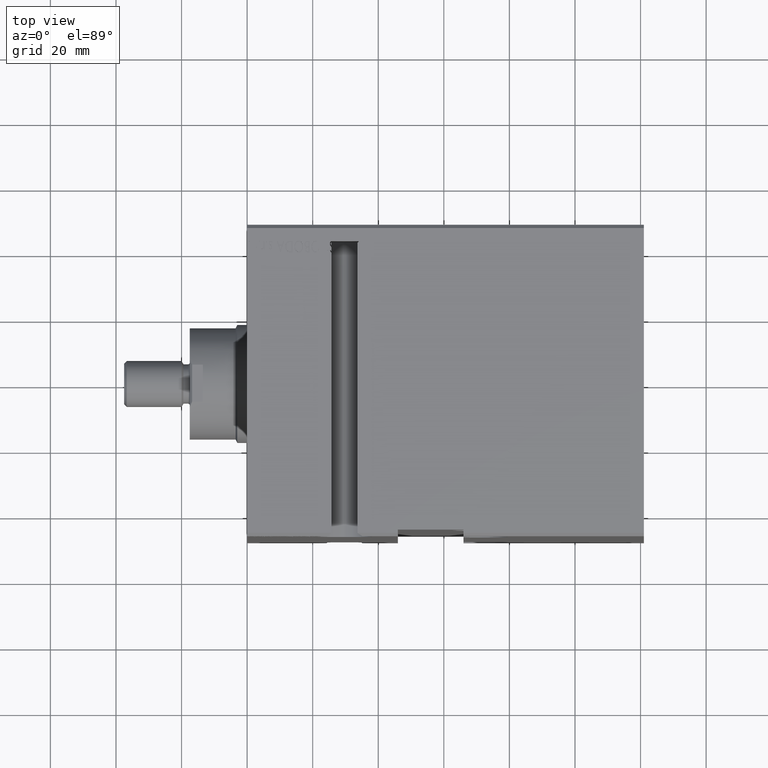
[diagram: clean part render]
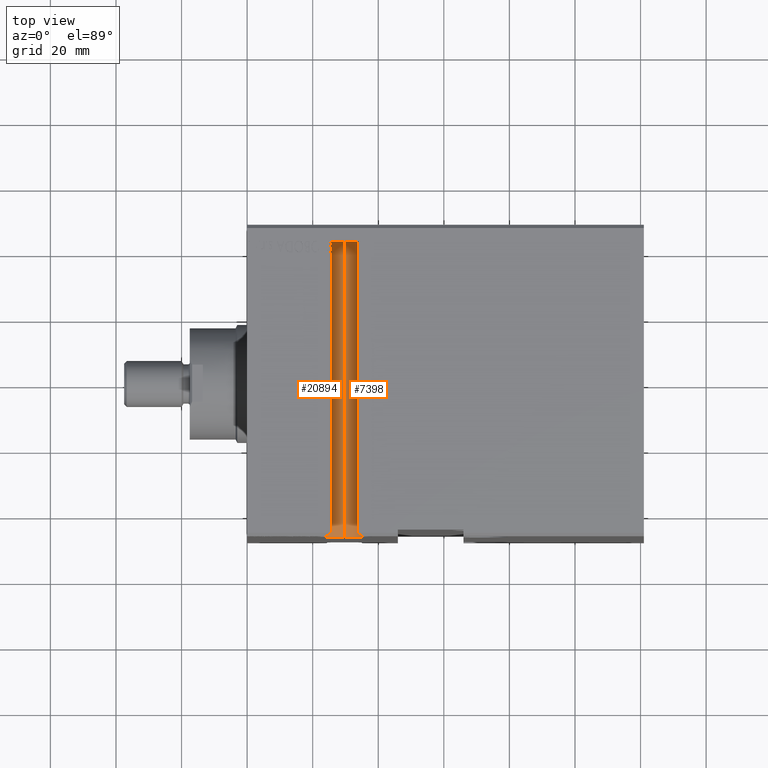
[diagram: same view with one multi-face feature highlighted, each face labeled with its STEP entity id]
A machine part, top view. The highlighted faces form ONE feature: a constant-radius fillet chain: 2 tangent blend faces with common blend radius 8.5 mm. The faces share edges in the B-rep.
Their STEP definitions:
[1] entity #20894 (Cylinder):
#33 = EDGE_CURVE ( 'NONE', #19864, #14387, #8235, .T. ) ;
#298 = DIRECTION ( 'NONE',  ( 0.000000000000000000, 0.000000000000000000, -1.000000000000000000 ) ) ;
#395 = ORIENTED_EDGE ( 'NONE', *, *, #22510, .F. ) ;
#519 = CARTESIAN_POINT ( 'NONE',  ( 21.54744382657680646, -47.30000000000002558, 57.48831757431248235 ) ) ;
#584 = CARTESIAN_POINT ( 'NONE',  ( 25.32075984671669389, 42.12382751095967848, 62.29999999999992610 ) ) ;
#735 = CARTESIAN_POINT ( 'NONE',  ( 25.50290088989978798, 39.66234840015685137, 62.40568645926867930 ) ) ;
#1373 = VERTEX_POINT ( 'NONE', #4732 ) ;
#1754 = VERTEX_POINT ( 'NONE', #21198 ) ;
#2107 = B_SPLINE_CURVE_WITH_KNOTS ( 'NONE', 3,
 ( #584, #27545, #18890, #12587, #36584, #6682 ),
 .UNSPECIFIED., .F., .F.,
 ( 4, 2, 4 ),
 ( 7.936626485794470375E-13, 0.0002638240300716282525, 0.0005276480593495938435 ),
 .UNSPECIFIED. ) ;
#2582 = VERTEX_POINT ( 'NONE', #31391 ) ;
#2664 = LINE ( 'NONE', #36105, #14501 ) ;
#3131 = CARTESIAN_POINT ( 'NONE',  ( 29.67506805813227544, 42.50000000000001421, 55.00000000000000711 ) ) ;
#3288 = EDGE_CURVE ( 'NONE', #9051, #8275, #30254, .T. ) ;
#3303 = CARTESIAN_POINT ( 'NONE',  ( 25.53350936226003043, 39.60731932265721866, 62.42286411968723314 ) ) ;
#3681 = CARTESIAN_POINT ( 'NONE',  ( 29.67506805813227544, 42.50000000000001421, 46.50000000000001421 ) ) ;
#3716 = CARTESIAN_POINT ( 'NONE',  ( 29.67506805813227544, -47.29999999998509708, 55.00000000000000000 ) ) ;
#4116 = LINE ( 'NONE', #18886, #29260 ) ;
#4732 = CARTESIAN_POINT ( 'NONE',  ( 21.54744382657655066, -47.50000000000000711, 57.48831757431162970 ) ) ;
#4760 = AXIS2_PLACEMENT_3D ( 'NONE', #3716, #7052, #7446 ) ;
#4934 = AXIS2_PLACEMENT_3D ( 'NONE', #17115, #23605, #23405 ) ;
#5295 = ORIENTED_EDGE ( 'NONE', *, *, #8352, .F. ) ;
#5406 = CIRCLE ( 'NONE', #4760, 8.499999999999992895 ) ;
#5576 = CARTESIAN_POINT ( 'NONE',  ( 21.45218213504835703, -47.50000000000000000, 57.15270692291084487 ) ) ;
#6063 = CARTESIAN_POINT ( 'NONE',  ( 25.59949012084840447, 39.50065224038743850, 62.45929518438705230 ) ) ;
#6107 = CARTESIAN_POINT ( 'NONE',  ( 25.41721720480644109, 39.23631692318244291, 62.35697548491999953 ) ) ;
#6394 = DIRECTION ( 'NONE',  ( 0.000000000000000000, 1.000000000000000000, 5.507058653894626469E-17 ) ) ;
#6682 = CARTESIAN_POINT ( 'NONE',  ( 25.63863887574661860, 42.50000000000001421, 62.48045716888917411 ) ) ;
#7052 = DIRECTION ( 'NONE',  ( -1.978001875676552280E-12, 1.000000000000000000, 2.551132029400578569E-14 ) ) ;
#7446 = DIRECTION ( 'NONE',  ( 1.000000000000000000, 1.977992932843203186E-12, 0.000000000000000000 ) ) ;
#7501 = EDGE_CURVE ( 'NONE', #22083, #37244, #2664, .T. ) ;
#8035 = CIRCLE ( 'NONE', #28158, 8.500000000000000000 ) ;
#8235 = LINE ( 'NONE', #34611, #37728 ) ;
#8275 = VERTEX_POINT ( 'NONE', #23210 ) ;
#8352 = EDGE_CURVE ( 'NONE', #8275, #10262, #17634, .T. ) ;
#8525 = EDGE_CURVE ( 'NONE', #24633, #22083, #15768, .T. ) ;
#8949 = CARTESIAN_POINT ( 'NONE',  ( 29.67506805813227544, -47.50000000000000711, 55.00000000000000000 ) ) ;
#8956 = CARTESIAN_POINT ( 'NONE',  ( 29.67506805813227544, -47.50000000000000711, 55.00000000000000000 ) ) ;
#8957 = DIRECTION ( 'NONE',  ( -0.000000000000000000, -1.000000000000000000, -5.507058653894626469E-17 ) ) ;
#9051 = VERTEX_POINT ( 'NONE', #16026 ) ;
#9249 = CARTESIAN_POINT ( 'NONE',  ( 25.32075984671669389, 39.39656593684716057, 62.29999999999992610 ) ) ;
#9290 = B_SPLINE_CURVE_WITH_KNOTS ( 'NONE', 3,
 ( #23639, #21072, #14970, #6107, #33061, #9249 ),
 .UNSPECIFIED., .F., .F.,
 ( 4, 2, 4 ),
 ( 0.000000000000000000, 0.0002916348794071036495, 0.0005832697588142072989 ),
 .UNSPECIFIED. ) ;
#9435 = DIRECTION ( 'NONE',  ( 0.000000000000000000, 1.000000000000000000, 0.000000000000000000 ) ) ;
#9755 = CARTESIAN_POINT ( 'NONE',  ( 25.32075984671669389, 42.12382751095967848, 62.29999999999992610 ) ) ;
#9949 = CIRCLE ( 'NONE', #30050, 8.500000000000000000 ) ;
#10096 = LINE ( 'NONE', #22112, #30206 ) ;
#10101 = VECTOR ( 'NONE', #30459, 1000.000000000000000 ) ;
#10262 = VERTEX_POINT ( 'NONE', #35818 ) ;
#10768 = CARTESIAN_POINT ( 'NONE',  ( 25.36341948340624697, 41.06095756681060038, 62.32544564470311599 ) ) ;
#10852 = EDGE_CURVE ( 'NONE', #1373, #25966, #16528, .T. ) ;
#10994 = DIRECTION ( 'NONE',  ( 3.673532066774414791E-15, 0.000000000000000000, 1.000000000000000000 ) ) ;
#11032 = AXIS2_PLACEMENT_3D ( 'NONE', #3131, #33415, #24191 ) ;
#11184 = ORIENTED_EDGE ( 'NONE', *, *, #12540, .F. ) ;
#11983 = CARTESIAN_POINT ( 'NONE',  ( 25.67506805813226478, 40.64506311415191675, 62.50000000000000000 ) ) ;
#12045 = EDGE_CURVE ( 'NONE', #24633, #10262, #10096, .T. ) ;
#12341 = ORIENTED_EDGE ( 'NONE', *, *, #22979, .F. ) ;
#12457 = CARTESIAN_POINT ( 'NONE',  ( 24.19784248308059915, -47.50000000000000711, 61.49999999999998579 ) ) ;
#12540 = EDGE_CURVE ( 'NONE', #16565, #22250, #30268, .T. ) ;
#12587 = CARTESIAN_POINT ( 'NONE',  ( 25.50887554163455562, 42.40029105242657437, 62.40922096684567322 ) ) ;
#13148 = VERTEX_POINT ( 'NONE', #30170 ) ;
#13362 = DIRECTION ( 'NONE',  ( -0.000000000000000000, -1.000000000000000000, -0.000000000000000000 ) ) ;
#14021 = CARTESIAN_POINT ( 'NONE',  ( 29.67506805813227544, 42.50000000000001421, 46.50000000000001421 ) ) ;
#14387 = VERTEX_POINT ( 'NONE', #30032 ) ;
#14501 = VECTOR ( 'NONE', #6394, 1000.000000000000000 ) ;
#14970 = CARTESIAN_POINT ( 'NONE',  ( 25.53231897182099175, 39.09233586508695879, 62.42239935484130342 ) ) ;
#15198 = VERTEX_POINT ( 'NONE', #35950 ) ;
#15690 =( BOUNDED_CURVE ( )  B_SPLINE_CURVE ( 3, ( #33115, #30547, #36265, #12457 ),
 .UNSPECIFIED., .F., .F. ) 
 B_SPLINE_CURVE_WITH_KNOTS ( ( 4, 4 ),
 ( 3.631549979843525566, 3.841804209124086267 ),
 .UNSPECIFIED. ) 
 CURVE ( )  GEOMETRIC_REPRESENTATION_ITEM ( )  RATIONAL_B_SPLINE_CURVE ( ( 1.000000000000000000, 0.9963194881255985624, 0.9963194881255985624, 1.000000000000000000 ) ) 
 REPRESENTATION_ITEM ( '' )  );
#15768 = B_SPLINE_CURVE_WITH_KNOTS ( 'NONE', 3,
 ( #28675, #37720, #31412, #22776, #10768, #16103 ),
 .UNSPECIFIED., .F., .F.,
 ( 4, 2, 4 ),
 ( 0.000000000000000000, 0.0003286481532635877629, 0.0006572963065271755258 ),
 .UNSPECIFIED. ) ;
#16026 = CARTESIAN_POINT ( 'NONE',  ( 25.32075984671682178, 39.56199557861030769, 62.30000000000000426 ) ) ;
#16103 = CARTESIAN_POINT ( 'NONE',  ( 25.32075984671669389, 41.16130350506401214, 62.29999999999992610 ) ) ;
#16152 = VERTEX_POINT ( 'NONE', #27546 ) ;
#16528 = CIRCLE ( 'NONE', #21550, 8.500000000000000000 ) ;
#16565 = VERTEX_POINT ( 'NONE', #5576 ) ;
#17115 = CARTESIAN_POINT ( 'NONE',  ( 29.67506805813227544, -47.29999999998509708, 55.00000000000000000 ) ) ;
#17252 = VERTEX_POINT ( 'NONE', #30544 ) ;
#17634 = B_SPLINE_CURVE_WITH_KNOTS ( 'NONE', 3,
 ( #27894, #735, #3303, #6063, #18068, #18256 ),
 .UNSPECIFIED., .F., .F.,
 ( 4, 2, 4 ),
 ( 0.000000000000000000, 0.0001957877881165360091, 0.0003915755762330720181 ),
 .UNSPECIFIED. ) ;
#17687 = ORIENTED_EDGE ( 'NONE', *, *, #33, .T. ) ;
#18068 = CARTESIAN_POINT ( 'NONE',  ( 25.63420321008348779, 39.44882266789790748, 62.47820541437397424 ) ) ;
#18141 = CIRCLE ( 'NONE', #4934, 8.499999999999992895 ) ;
#18211 = FACE_OUTER_BOUND ( 'NONE', #20012, .T. ) ;
#18250 = ORIENTED_EDGE ( 'NONE', *, *, #25106, .F. ) ;
#18256 = CARTESIAN_POINT ( 'NONE',  ( 25.67506805813224346, 39.40252062993686621, 62.49999999999998579 ) ) ;
#18886 = CARTESIAN_POINT ( 'NONE',  ( 21.20587188452988059, -47.30000000000001137, 54.27700887070556490 ) ) ;
#18890 = CARTESIAN_POINT ( 'NONE',  ( 25.40304512554297744, 42.27259324517509498, 62.34870978359457183 ) ) ;
#19853 = VECTOR ( 'NONE', #21583, 1000.000000000000000 ) ;
#19864 = VERTEX_POINT ( 'NONE', #34742 ) ;
#19933 = DIRECTION ( 'NONE',  ( -0.000000000000000000, -1.000000000000000000, -5.507058653894626469E-17 ) ) ;
#20012 = EDGE_LOOP ( 'NONE', ( #28273, #24031, #18250, #29437, #23831, #27567, #5295, #37098, #12341, #395, #17687, #33159, #25051, #23387, #36254, #11184, #21651, #29330, #31415, #29679, #25138 ) ) ;
#20460 = CARTESIAN_POINT ( 'NONE',  ( 25.37125100533370770, 39.61366486426159383, 62.33011699542046813 ) ) ;
#20856 = CARTESIAN_POINT ( 'NONE',  ( 21.45218213504834992, -47.30000000000001137, 57.15270692291083776 ) ) ;
#20894 = ADVANCED_FACE ( 'NONE', ( #18211 ), #35916, .F. ) ;
#20971 = CARTESIAN_POINT ( 'NONE',  ( 29.67506805813227544, 42.50000000000001421, 55.00000000000000711 ) ) ;
#21072 = CARTESIAN_POINT ( 'NONE',  ( 25.59802195861042406, 39.02905940183737954, 62.45890874692169348 ) ) ;
#21198 = CARTESIAN_POINT ( 'NONE',  ( 25.32075984671669389, 39.39656593684716057, 62.29999999999992610 ) ) ;
#21268 = VERTEX_POINT ( 'NONE', #37239 ) ;
#21550 = AXIS2_PLACEMENT_3D ( 'NONE', #8956, #35728, #23925 ) ;
#21583 = DIRECTION ( 'NONE',  ( -0.000000000000000000, -1.000000000000000000, -0.000000000000000000 ) ) ;
#21651 = ORIENTED_EDGE ( 'NONE', *, *, #25212, .T. ) ;
#21847 = LINE ( 'NONE', #36393, #23808 ) ;
#22083 = VERTEX_POINT ( 'NONE', #22528 ) ;
#22112 = CARTESIAN_POINT ( 'NONE',  ( 25.67506805813224346, 42.50000000000001421, 62.49999999999998579 ) ) ;
#22146 = DIRECTION ( 'NONE',  ( 0.000000000000000000, 1.000000000000000000, 5.507058653894626469E-17 ) ) ;
#22211 = CARTESIAN_POINT ( 'NONE',  ( 21.20587188452988059, -47.30000000000001137, 54.27700887070556490 ) ) ;
#22250 = VERTEX_POINT ( 'NONE', #23297 ) ;
#22510 = EDGE_CURVE ( 'NONE', #19864, #1754, #9290, .T. ) ;
#22528 = CARTESIAN_POINT ( 'NONE',  ( 25.32075984671669389, 41.16130350506401214, 62.29999999999992610 ) ) ;
#22776 = CARTESIAN_POINT ( 'NONE',  ( 25.41757930756739370, 40.97095596087257263, 62.35721900688200492 ) ) ;
#22880 = LINE ( 'NONE', #14021, #27430 ) ;
#22979 = EDGE_CURVE ( 'NONE', #1754, #9051, #37674, .T. ) ;
#23210 = CARTESIAN_POINT ( 'NONE',  ( 25.47315705128205821, 39.71794871794872961, 62.38877147369649379 ) ) ;
#23228 = CARTESIAN_POINT ( 'NONE',  ( 25.32075984671682178, 39.56199557861030769, 62.30000000000000426 ) ) ;
#23297 = CARTESIAN_POINT ( 'NONE',  ( 21.45218213504834992, -47.30000000000001137, 57.15270692291083776 ) ) ;
#23387 = ORIENTED_EDGE ( 'NONE', *, *, #37963, .F. ) ;
#23405 = DIRECTION ( 'NONE',  ( 1.000000000000000000, 1.977992932843203186E-12, 0.000000000000000000 ) ) ;
#23605 = DIRECTION ( 'NONE',  ( -1.978001875676552280E-12, 1.000000000000000000, 2.551132029400578569E-14 ) ) ;
#23639 = CARTESIAN_POINT ( 'NONE',  ( 25.67506805813221860, 38.98382125218171268, 62.49999999999997158 ) ) ;
#23808 = VECTOR ( 'NONE', #9435, 1000.000000000000000 ) ;
#23831 = ORIENTED_EDGE ( 'NONE', *, *, #8525, .F. ) ;
#23925 = DIRECTION ( 'NONE',  ( 0.000000000000000000, 0.000000000000000000, 1.000000000000000000 ) ) ;
#23951 = LINE ( 'NONE', #519, #19853 ) ;
#24031 = ORIENTED_EDGE ( 'NONE', *, *, #30411, .T. ) ;
#24105 = DIRECTION ( 'NONE',  ( 0.000000000000000000, -1.000000000000000000, -1.692413147294446216E-16 ) ) ;
#24191 = DIRECTION ( 'NONE',  ( 0.000000000000000000, 0.000000000000000000, 1.000000000000000000 ) ) ;
#24402 = VECTOR ( 'NONE', #22146, 1000.000000000000000 ) ;
#24456 = EDGE_CURVE ( 'NONE', #22250, #2582, #18141, .T. ) ;
#24633 = VERTEX_POINT ( 'NONE', #11983 ) ;
#25051 = ORIENTED_EDGE ( 'NONE', *, *, #10852, .F. ) ;
#25105 = EDGE_CURVE ( 'NONE', #13148, #21268, #21847, .T. ) ;
#25106 = EDGE_CURVE ( 'NONE', #37244, #17252, #2107, .T. ) ;
#25138 = ORIENTED_EDGE ( 'NONE', *, *, #28746, .F. ) ;
#25212 = EDGE_CURVE ( 'NONE', #16565, #15198, #9949, .T. ) ;
#25501 = CIRCLE ( 'NONE', #11032, 8.499999999999992895 ) ;
#25966 = VERTEX_POINT ( 'NONE', #34797 ) ;
#27430 = VECTOR ( 'NONE', #19933, 1000.000000000000000 ) ;
#27545 = CARTESIAN_POINT ( 'NONE',  ( 25.35795301035270910, 42.20182077288757938, 62.32218499970252168 ) ) ;
#27546 = CARTESIAN_POINT ( 'NONE',  ( 29.67506805813227544, -47.50000000000000711, 46.50000000000000000 ) ) ;
#27567 = ORIENTED_EDGE ( 'NONE', *, *, #12045, .T. ) ;
#27894 = CARTESIAN_POINT ( 'NONE',  ( 25.47315705128205821, 39.71794871794872961, 62.38877147369649379 ) ) ;
#27994 = EDGE_CURVE ( 'NONE', #14387, #25966, #15690, .T. ) ;
#28158 = AXIS2_PLACEMENT_3D ( 'NONE', #36910, #30022, #30604 ) ;
#28273 = ORIENTED_EDGE ( 'NONE', *, *, #38714, .F. ) ;
#28675 = CARTESIAN_POINT ( 'NONE',  ( 25.67506805813226478, 40.64506311415191675, 62.50000000000000000 ) ) ;
#28746 = EDGE_CURVE ( 'NONE', #16152, #13148, #8035, .T. ) ;
#29260 = VECTOR ( 'NONE', #13362, 1000.000000000000000 ) ;
#29330 = ORIENTED_EDGE ( 'NONE', *, *, #31069, .F. ) ;
#29437 = ORIENTED_EDGE ( 'NONE', *, *, #7501, .F. ) ;
#29679 = ORIENTED_EDGE ( 'NONE', *, *, #25105, .F. ) ;
#30022 = DIRECTION ( 'NONE',  ( -0.000000000000000000, 1.000000000000000000, 5.507058653894625853E-17 ) ) ;
#30032 = CARTESIAN_POINT ( 'NONE',  ( 25.67506805813224346, -46.50000000000000711, 62.49999999999997868 ) ) ;
#30050 = AXIS2_PLACEMENT_3D ( 'NONE', #8949, #24105, #10994 ) ;
#30170 = CARTESIAN_POINT ( 'NONE',  ( 21.24403712844057779, -47.50000000000000711, 53.91939023575486090 ) ) ;
#30206 = VECTOR ( 'NONE', #34289, 1000.000000000000000 ) ;
#30254 =( BOUNDED_CURVE ( )  B_SPLINE_CURVE ( 3, ( #23228, #20460, #32448, #38545 ),
 .UNSPECIFIED., .F., .F. ) 
 B_SPLINE_CURVE_WITH_KNOTS ( ( 4, 4 ),
 ( 1.032968656127309703, 1.053718075105154250 ),
 .UNSPECIFIED. ) 
 CURVE ( )  GEOMETRIC_REPRESENTATION_ITEM ( )  RATIONAL_B_SPLINE_CURVE ( ( 1.000000000000000000, 0.9999641221228170451, 0.9999641221228170451, 1.000000000000000000 ) ) 
 REPRESENTATION_ITEM ( '' )  );
#30268 = LINE ( 'NONE', #20856, #10101 ) ;
#30411 = EDGE_CURVE ( 'NONE', #32137, #17252, #25501, .T. ) ;
#30459 = DIRECTION ( 'NONE',  ( 0.000000000000000000, 1.000000000000000000, 0.000000000000000000 ) ) ;
#30544 = CARTESIAN_POINT ( 'NONE',  ( 25.63863887574661860, 42.50000000000001421, 62.48045716888917411 ) ) ;
#30547 = CARTESIAN_POINT ( 'NONE',  ( 25.14846196542404044, -46.78085658277772296, 62.21914341722227704 ) ) ;
#30604 = DIRECTION ( 'NONE',  ( 0.000000000000000000, 0.000000000000000000, 1.000000000000000000 ) ) ;
#31069 = EDGE_CURVE ( 'NONE', #33212, #15198, #4116, .T. ) ;
#31391 = CARTESIAN_POINT ( 'NONE',  ( 21.54744382657655066, -47.30000000000123350, 57.48831757431162970 ) ) ;
#31412 = CARTESIAN_POINT ( 'NONE',  ( 25.53910111497902591, 40.80212458941267073, 62.42621433986092683 ) ) ;
#31415 = ORIENTED_EDGE ( 'NONE', *, *, #37797, .F. ) ;
#31645 = DIRECTION ( 'NONE',  ( -0.000000000000000000, -1.000000000000000000, -5.507058653894626469E-17 ) ) ;
#32137 = VERTEX_POINT ( 'NONE', #3681 ) ;
#32448 = CARTESIAN_POINT ( 'NONE',  ( 25.42205189615024352, 39.66565110919717085, 62.35970854833472998 ) ) ;
#33061 = CARTESIAN_POINT ( 'NONE',  ( 25.36675983086452391, 39.31448091953050294, 62.32743809708097871 ) ) ;
#33115 = CARTESIAN_POINT ( 'NONE',  ( 25.67506805813224346, -46.50000000000000711, 62.49999999999997868 ) ) ;
#33159 = ORIENTED_EDGE ( 'NONE', *, *, #27994, .T. ) ;
#33212 = VERTEX_POINT ( 'NONE', #22211 ) ;
#33415 = DIRECTION ( 'NONE',  ( -0.000000000000000000, 1.000000000000000000, 5.507058653894625853E-17 ) ) ;
#33774 = AXIS2_PLACEMENT_3D ( 'NONE', #20971, #8957, #298 ) ;
#34289 = DIRECTION ( 'NONE',  ( -0.000000000000000000, -1.000000000000000000, -5.507058653894626469E-17 ) ) ;
#34611 = CARTESIAN_POINT ( 'NONE',  ( 25.67506805813224346, 42.50000000000001421, 62.49999999999998579 ) ) ;
#34742 = CARTESIAN_POINT ( 'NONE',  ( 25.67506805813221860, 38.98382125218171268, 62.49999999999997158 ) ) ;
#34797 = CARTESIAN_POINT ( 'NONE',  ( 24.19784248308059915, -47.50000000000000711, 61.49999999999998579 ) ) ;
#35728 = DIRECTION ( 'NONE',  ( -0.000000000000000000, 1.000000000000000000, 5.507058653894625853E-17 ) ) ;
#35818 = CARTESIAN_POINT ( 'NONE',  ( 25.67506805813224346, 39.40252062993686621, 62.49999999999998579 ) ) ;
#35916 = CYLINDRICAL_SURFACE ( 'NONE', #33774, 8.499999999999992895 ) ;
#35950 = CARTESIAN_POINT ( 'NONE',  ( 21.20587188452987704, -47.50000000000000711, 54.27700887070556490 ) ) ;
#36105 = CARTESIAN_POINT ( 'NONE',  ( 25.32075984671669389, 42.50000000002550138, 62.29999999999992610 ) ) ;
#36254 = ORIENTED_EDGE ( 'NONE', *, *, #24456, .F. ) ;
#36265 = CARTESIAN_POINT ( 'NONE',  ( 24.65423443009438742, -47.11542128547208108, 61.88457871452791892 ) ) ;
#36393 = CARTESIAN_POINT ( 'NONE',  ( 21.24403712844057779, -47.30000000000001137, 53.91939023575485379 ) ) ;
#36584 = CARTESIAN_POINT ( 'NONE',  ( 25.56956443761124120, 42.45737839907536681, 62.44318483759290928 ) ) ;
#36910 = CARTESIAN_POINT ( 'NONE',  ( 29.67506805813227544, -47.50000000000000711, 55.00000000000000000 ) ) ;
#37098 = ORIENTED_EDGE ( 'NONE', *, *, #3288, .F. ) ;
#37239 = CARTESIAN_POINT ( 'NONE',  ( 21.24403712844057779, -47.30000000000174509, 53.91939023575486090 ) ) ;
#37244 = VERTEX_POINT ( 'NONE', #9755 ) ;
#37288 = CARTESIAN_POINT ( 'NONE',  ( 25.32075984671669389, 42.50000000002550138, 62.29999999999992610 ) ) ;
#37674 = LINE ( 'NONE', #37288, #24402 ) ;
#37720 = CARTESIAN_POINT ( 'NONE',  ( 25.60514328783832383, 40.72210637760802854, 62.46270678917657193 ) ) ;
#37728 = VECTOR ( 'NONE', #31645, 1000.000000000000000 ) ;
#37797 = EDGE_CURVE ( 'NONE', #21268, #33212, #5406, .T. ) ;
#37963 = EDGE_CURVE ( 'NONE', #2582, #1373, #23951, .T. ) ;
#38545 = CARTESIAN_POINT ( 'NONE',  ( 25.47315705128205821, 39.71794871794872961, 62.38877147369649379 ) ) ;
#38714 = EDGE_CURVE ( 'NONE', #32137, #16152, #22880, .T. ) ;
[2] entity #7398 (Cylinder):
#1079 = CARTESIAN_POINT ( 'NONE',  ( 34.00468729222821906, 42.22945612004753002, 62.31471840769010839 ) ) ;
#1273 = CARTESIAN_POINT ( 'NONE',  ( 33.75267077599347232, 42.06206719502444003, 62.45817918836866056 ) ) ;
#1555 = CYLINDRICAL_SURFACE ( 'NONE', #34061, 8.499999999999992895 ) ;
#2193 = DIRECTION ( 'NONE',  ( 0.000000000000000000, 1.000000000000000000, 5.507058653894626469E-17 ) ) ;
#2911 = DIRECTION ( 'NONE',  ( -0.000000000000000000, 1.000000000000000000, 5.507058653894625853E-17 ) ) ;
#2997 = VERTEX_POINT ( 'NONE', #32895 ) ;
#3167 = CARTESIAN_POINT ( 'NONE',  ( 34.02754407051283181, 42.23076923076924061, 62.30109255944971380 ) ) ;
#3681 = CARTESIAN_POINT ( 'NONE',  ( 29.67506805813227544, 42.50000000000001421, 46.50000000000001421 ) ) ;
#3841 = ORIENTED_EDGE ( 'NONE', *, *, #13135, .F. ) ;
#4961 = ORIENTED_EDGE ( 'NONE', *, *, #29498, .T. ) ;
#4967 = CARTESIAN_POINT ( 'NONE',  ( 33.67506805813230386, 42.50000000000001421, 62.49999999999998579 ) ) ;
#5777 = CARTESIAN_POINT ( 'NONE',  ( 33.67506805813230386, -46.50000000000000711, 62.49999999999997868 ) ) ;
#5984 = LINE ( 'NONE', #11700, #28953 ) ;
#6118 = ORIENTED_EDGE ( 'NONE', *, *, #13881, .T. ) ;
#6317 = CARTESIAN_POINT ( 'NONE',  ( 34.02937626953421102, 42.23066561297633115, 62.30000000000805471 ) ) ;
#6978 = CARTESIAN_POINT ( 'NONE',  ( 34.02754407051283181, 42.23076923076924061, 62.30109255944971380 ) ) ;
#7167 = EDGE_LOOP ( 'NONE', ( #20293, #14923, #28125, #4961, #6118, #24078, #16730, #3841 ) ) ;
#7273 = DIRECTION ( 'NONE',  ( 0.000000000000000000, 0.000000000000000000, -1.000000000000000000 ) ) ;
#7398 = ADVANCED_FACE ( 'NONE', ( #10418 ), #1555, .F. ) ;
#7747 = CARTESIAN_POINT ( 'NONE',  ( 33.72802640372482585, 42.01572268311295488, 62.47154243832542875 ) ) ;
#8367 = CIRCLE ( 'NONE', #30348, 8.500000000000000000 ) ;
#8589 = DIRECTION ( 'NONE',  ( -0.000000000000000000, 1.000000000000000000, 5.507058653894625853E-17 ) ) ;
#9001 = CARTESIAN_POINT ( 'NONE',  ( 29.67506805813227544, -47.50000000000000711, 55.00000000000000000 ) ) ;
#10418 = FACE_OUTER_BOUND ( 'NONE', #7167, .T. ) ;
#10519 = CARTESIAN_POINT ( 'NONE',  ( 33.67506805813237492, 41.81295861275514625, 62.49999999999995737 ) ) ;
#10554 = EDGE_CURVE ( 'NONE', #25183, #16152, #8367, .T. ) ;
#11354 = EDGE_CURVE ( 'NONE', #28102, #2997, #15163, .T. ) ;
#11401 = CARTESIAN_POINT ( 'NONE',  ( 35.15229363318395173, -47.50000000000000711, 61.49999999999998579 ) ) ;
#11646 = AXIS2_PLACEMENT_3D ( 'NONE', #28876, #8589, #19822 ) ;
#11700 = CARTESIAN_POINT ( 'NONE',  ( 34.02937626953421102, 42.50000000000228084, 62.30000000000805471 ) ) ;
#13135 = EDGE_CURVE ( 'NONE', #29562, #28102, #5984, .T. ) ;
#13881 = EDGE_CURVE ( 'NONE', #17244, #27048, #23267, .T. ) ;
#14021 = CARTESIAN_POINT ( 'NONE',  ( 29.67506805813227544, 42.50000000000001421, 46.50000000000001421 ) ) ;
#14719 = DIRECTION ( 'NONE',  ( 0.000000000000000000, 0.000000000000000000, 1.000000000000000000 ) ) ;
#14923 = ORIENTED_EDGE ( 'NONE', *, *, #38714, .T. ) ;
#15163 = B_SPLINE_CURVE_WITH_KNOTS ( 'NONE', 3,
 ( #6317, #30116, #27574, #3167 ),
 .UNSPECIFIED., .F., .F.,
 ( 4, 4 ),
 ( 1.576358026975120708E-14, 2.135737835468621686E-06 ),
 .UNSPECIFIED. ) ;
#16152 = VERTEX_POINT ( 'NONE', #27546 ) ;
#16333 = CARTESIAN_POINT ( 'NONE',  ( 29.67506805813227544, 42.50000000000001421, 55.00000000000000711 ) ) ;
#16730 = ORIENTED_EDGE ( 'NONE', *, *, #11354, .F. ) ;
#17244 = VERTEX_POINT ( 'NONE', #5777 ) ;
#17250 = CARTESIAN_POINT ( 'NONE',  ( 33.67506805813237492, 41.81295861275514625, 62.49999999999995737 ) ) ;
#17685 = EDGE_CURVE ( 'NONE', #29562, #32137, #30482, .T. ) ;
#19768 = CARTESIAN_POINT ( 'NONE',  ( 33.69204751454125812, 41.91829676354453937, 62.49094745713748011 ) ) ;
#19822 = DIRECTION ( 'NONE',  ( 0.000000000000000000, 0.000000000000000000, 1.000000000000000000 ) ) ;
#19933 = DIRECTION ( 'NONE',  ( -0.000000000000000000, -1.000000000000000000, -5.507058653894626469E-17 ) ) ;
#20076 = CARTESIAN_POINT ( 'NONE',  ( 34.69590168617017412, -47.11542128547208108, 61.88457871452791892 ) ) ;
#20153 = CARTESIAN_POINT ( 'NONE',  ( 33.68191328111799265, 41.86576516441365214, 62.49634921440764401 ) ) ;
#20293 = ORIENTED_EDGE ( 'NONE', *, *, #17685, .T. ) ;
#21020 = EDGE_CURVE ( 'NONE', #2997, #27048, #30920, .T. ) ;
#22237 = DIRECTION ( 'NONE',  ( -0.000000000000000000, -1.000000000000000000, -5.507058653894626469E-17 ) ) ;
#22880 = LINE ( 'NONE', #14021, #27430 ) ;
#23267 = LINE ( 'NONE', #4967, #27096 ) ;
#23408 = CARTESIAN_POINT ( 'NONE',  ( 34.20167415084051044, -46.78085658277772296, 62.21914341722227704 ) ) ;
#24078 = ORIENTED_EDGE ( 'NONE', *, *, #21020, .F. ) ;
#25183 = VERTEX_POINT ( 'NONE', #37371 ) ;
#25277 = CARTESIAN_POINT ( 'NONE',  ( 33.91517626869813284, 42.20772103846113765, 62.36695747718403737 ) ) ;
#27048 = VERTEX_POINT ( 'NONE', #17250 ) ;
#27096 = VECTOR ( 'NONE', #2193, 1000.000000000000000 ) ;
#27430 = VECTOR ( 'NONE', #19933, 1000.000000000000000 ) ;
#27546 = CARTESIAN_POINT ( 'NONE',  ( 29.67506805813227544, -47.50000000000000711, 46.50000000000000000 ) ) ;
#27574 = CARTESIAN_POINT ( 'NONE',  ( 34.02815485019313257, 42.23073471485768238, 62.30072844902572626 ) ) ;
#27798 = CARTESIAN_POINT ( 'NONE',  ( 34.02937626953421102, 42.23066561297633115, 62.30000000000805471 ) ) ;
#28102 = VERTEX_POINT ( 'NONE', #27798 ) ;
#28125 = ORIENTED_EDGE ( 'NONE', *, *, #10554, .F. ) ;
#28239 = CARTESIAN_POINT ( 'NONE',  ( 33.98179309087189637, 42.22797938097010473, 62.32821836098110424 ) ) ;
#28876 = CARTESIAN_POINT ( 'NONE',  ( 29.67506805813227544, 42.50000000000001421, 55.00000000000000711 ) ) ;
#28953 = VECTOR ( 'NONE', #32544, 1000.000000000000000 ) ;
#29498 = EDGE_CURVE ( 'NONE', #25183, #17244, #34525, .T. ) ;
#29562 = VERTEX_POINT ( 'NONE', #33408 ) ;
#30116 = CARTESIAN_POINT ( 'NONE',  ( 34.02876558429744591, 42.23070020151625670, 62.30036426189039389 ) ) ;
#30348 = AXIS2_PLACEMENT_3D ( 'NONE', #9001, #2911, #14719 ) ;
#30482 = CIRCLE ( 'NONE', #11646, 8.499999999999992895 ) ;
#30920 = B_SPLINE_CURVE_WITH_KNOTS ( 'NONE', 3,
 ( #6978, #1079, #28239, #34517, #25277, #31363, #38055, #1273, #7747, #19768, #20153, #10519 ),
 .UNSPECIFIED., .F., .F.,
 ( 4, 2, 2, 2, 2, 4 ),
 ( 9.813077866773594792E-18, 7.914540903618277499E-05, 0.0001582908180723557380, 0.0003165816361446942913, 0.0004748724542170328447, 0.0006331632722893713438 ),
 .UNSPECIFIED. ) ;
#31363 = CARTESIAN_POINT ( 'NONE',  ( 33.85245004812898628, 42.17359677586229338, 62.40282379510904320 ) ) ;
#32137 = VERTEX_POINT ( 'NONE', #3681 ) ;
#32544 = DIRECTION ( 'NONE',  ( -0.000000000000000000, -1.000000000000000000, -5.507058653894626469E-17 ) ) ;
#32895 = CARTESIAN_POINT ( 'NONE',  ( 34.02754407051283181, 42.23076923076924061, 62.30109255944971380 ) ) ;
#33408 = CARTESIAN_POINT ( 'NONE',  ( 34.02937626953421812, 42.50000000000001421, 62.30000000000805471 ) ) ;
#34061 = AXIS2_PLACEMENT_3D ( 'NONE', #16333, #22237, #7273 ) ;
#34517 = CARTESIAN_POINT ( 'NONE',  ( 33.93725392066237134, 42.21673614173287348, 62.35421216223022611 ) ) ;
#34525 =( BOUNDED_CURVE ( )  B_SPLINE_CURVE ( 3, ( #11401, #20076, #23408, #35398 ),
 .UNSPECIFIED., .F., .F. ) 
 B_SPLINE_CURVE_WITH_KNOTS ( ( 4, 4 ),
 ( 2.441381098055499965, 2.651635327336061110 ),
 .UNSPECIFIED. ) 
 CURVE ( )  GEOMETRIC_REPRESENTATION_ITEM ( )  RATIONAL_B_SPLINE_CURVE ( ( 1.000000000000000000, 0.9963194881255985624, 0.9963194881255985624, 1.000000000000000000 ) ) 
 REPRESENTATION_ITEM ( '' )  );
#35398 = CARTESIAN_POINT ( 'NONE',  ( 33.67506805813230386, -46.50000000000000711, 62.49999999999997868 ) ) ;
#37371 = CARTESIAN_POINT ( 'NONE',  ( 35.15229363318395173, -47.50000000000000711, 61.49999999999998579 ) ) ;
#38055 = CARTESIAN_POINT ( 'NONE',  ( 33.81532700027926808, 42.14014672126167227, 62.42357977141055869 ) ) ;
#38714 = EDGE_CURVE ( 'NONE', #32137, #16152, #22880, .T. ) ;